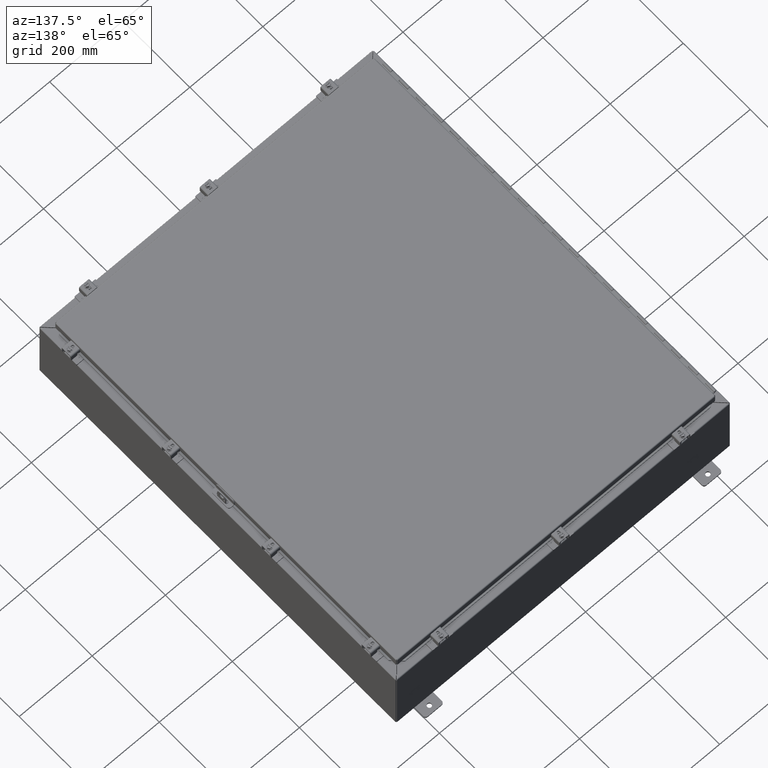
[diagram: clean part render]
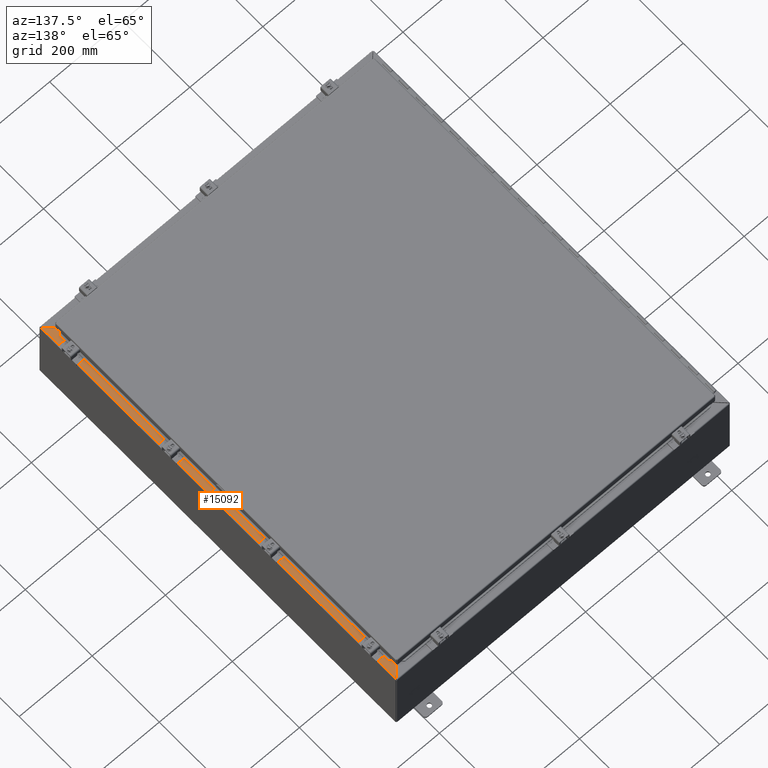
[diagram: same view with one face highlighted and labeled with its STEP entity id]
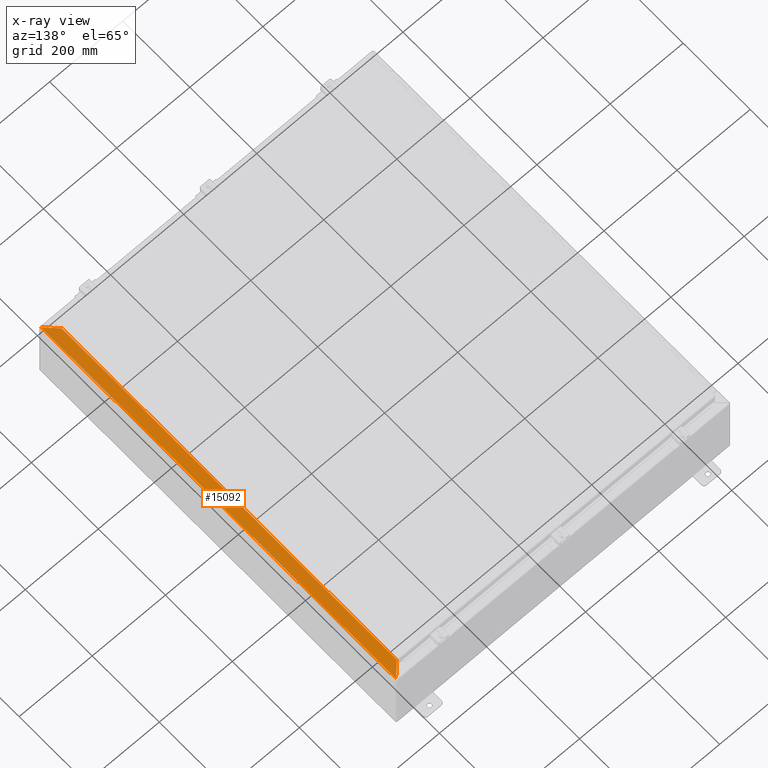
[diagram: x-ray of the same camera — body ghosted, the highlighted face saturated]
A machine part, auxiliary view. The second image highlights one B-rep face of the part: STEP entity #15092.
The next image is the same camera in x-ray: the body ghosted, the highlighted face saturated — about 0% of this face is hidden behind the body in this view.
In plain terms, the highlighted planar face has unit normal (0, 0, 1).
Its self-contained STEP definition (entity closure, byte-faithful):
#1383=PLANE('',#15992);
#1875=FACE_OUTER_BOUND('',#2726,.T.);
#2726=EDGE_LOOP('',(#10752,#10753,#10754,#10755));
#3648=LINE('',#21733,#5068);
#3649=LINE('',#21743,#5069);
#3650=LINE('',#21745,#5070);
#3651=LINE('',#21746,#5071);
#5068=VECTOR('',#17509,41.7371740981923);
#5069=VECTOR('',#17512,1.64685169338348);
#5070=VECTOR('',#17513,39.4081740981923);
#5071=VECTOR('',#17514,1.64685169338348);
#7021=VERTEX_POINT('',#21724);
#7022=VERTEX_POINT('',#21732);
#7023=VERTEX_POINT('',#21742);
#7024=VERTEX_POINT('',#21744);
#8478=EDGE_CURVE('',#7022,#7021,#3648,.T.);
#8480=EDGE_CURVE('',#7023,#7021,#3649,.T.);
#8481=EDGE_CURVE('',#7023,#7024,#3650,.T.);
#8482=EDGE_CURVE('',#7022,#7024,#3651,.T.);
#10752=ORIENTED_EDGE('',*,*,#8478,.T.);
#10753=ORIENTED_EDGE('',*,*,#8480,.F.);
#10754=ORIENTED_EDGE('',*,*,#8481,.T.);
#10755=ORIENTED_EDGE('',*,*,#8482,.F.);
#15092=ADVANCED_FACE('',(#1875),#1383,.T.);
#15992=AXIS2_PLACEMENT_3D('',#21741,#17510,#17511);
#17509=DIRECTION('',(-1.23948771002336E-18,1.,-2.71908737696582E-16));
#17510=DIRECTION('center_axis',(9.91589942680289E-15,2.71908737696582E-16,
1.));
#17511=DIRECTION('ref_axis',(1.,2.68610879813092E-16,-9.02389274415329E-15));
#17512=DIRECTION('',(0.707106781186548,0.707106781186547,-7.52569647328629E-15));
#17513=DIRECTION('',(0.,-1.,2.71908737696582E-16));
#17514=DIRECTION('',(-0.707106781186548,0.707106781186547,7.5274493736162E-15));
#21724=CARTESIAN_POINT('',(17.89475,20.8685870490961,8.));
#21732=CARTESIAN_POINT('',(17.89475,-20.8685870490961,8.00000000000001));
#21733=CARTESIAN_POINT('',(17.89475,7.27809684438201E-17,8.));
#21741=CARTESIAN_POINT('Origin',(17.3139354601702,1.16468278651559E-16,
8.00000000000001));
#21742=CARTESIAN_POINT('',(16.73025,19.7040870490961,8.00000000000001));
#21743=CARTESIAN_POINT('',(17.89475,20.8685870490961,7.99999999999999));
#21744=CARTESIAN_POINT('',(16.73025,-19.7040870490961,8.00000000000002));
#21745=CARTESIAN_POINT('',(16.73025,-9.85204352454806,8.00000000000002));
#21746=CARTESIAN_POINT('',(17.89475,-20.8685870490961,8.00000000000001));